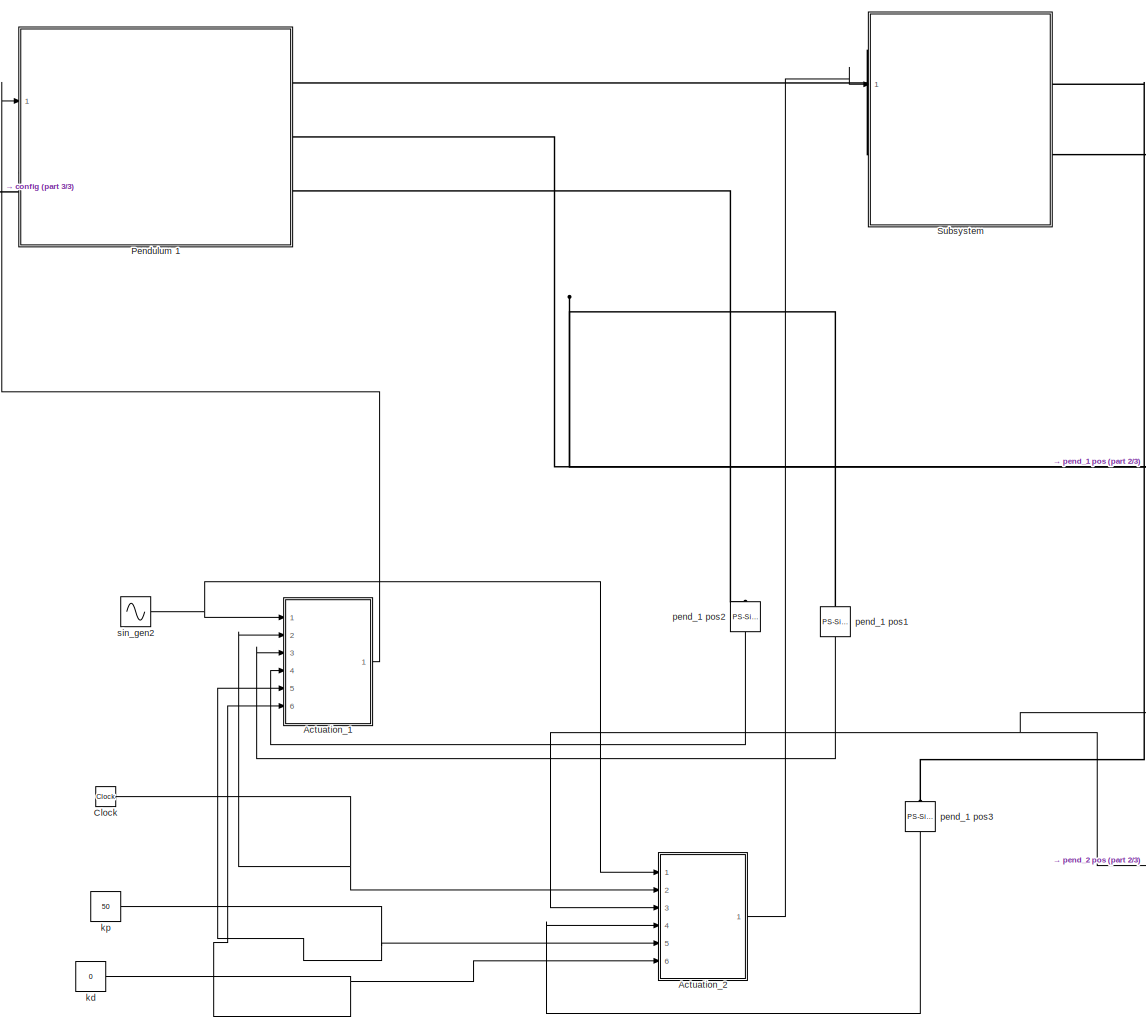
[diagram: root canvas - part 1/3, center side, full height]
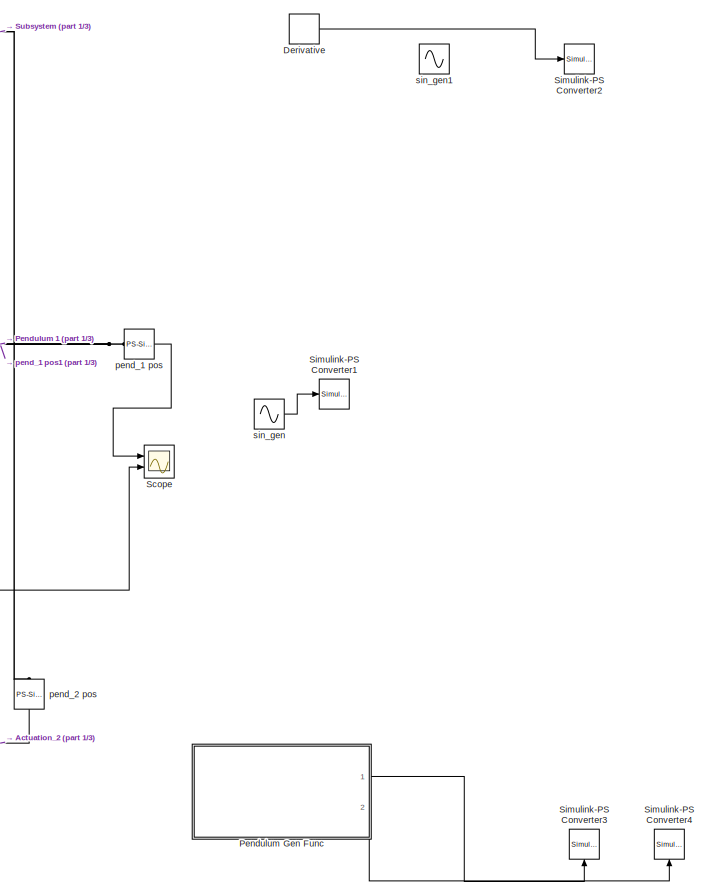
[diagram: root canvas - part 2/3, right side, full height]
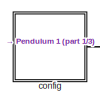
[diagram: root canvas - part 3/3, top left region]
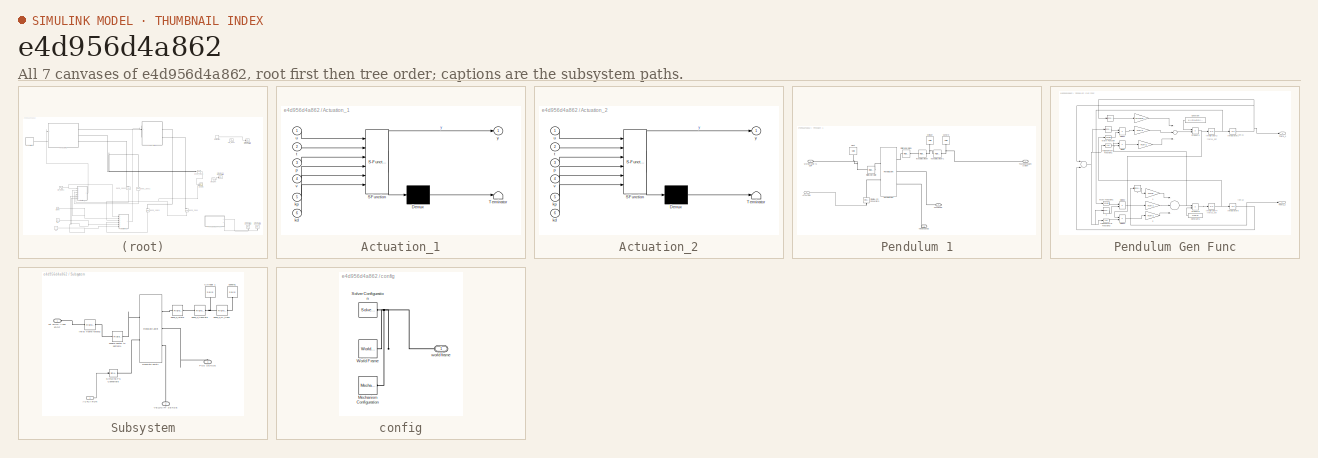
[diagram: thumbnail index - all 7 canvases of the model, root first then tree order]
MODEL slx_e4d956d4a862
KIND model
CONFIG AbsTol = auto
CONFIG EnableMultiTasking = on
CONFIG FixedStep = auto
CONFIG InitFcn = m1 = 7800;\nm2 = 1000;\nl1 = 10;\nl2 = 10;\n
CONFIG MaxStep = 1/60
CONFIG MinStep = auto
CONFIG RelTol = 1e-3
CONFIG SampleTimeConstraint = Unconstrained
CONFIG Solver = VariableStepAuto
CONFIG SolverName = VariableStepAuto
CONFIG StartTime = 0.0
CONFIG StopTime = 20
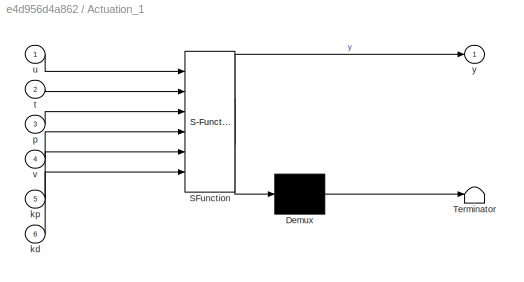
BLOCK [SubSystem] Actuation_1
  ErrorFcn = Stateflow.Translate.translate
  PermitHierarchicalResolution = ExplicitOnly
  Ports = [6, 1]
  RequestExecContextInheritance = off
  SFBlockType = MATLAB Function
  TreatAsAtomicUnit = on
  Variant = off
BLOCK [Demux] Actuation_1/ Demux 
  Outputs = 1
  Ports = [1, 1]
BLOCK [S-Function] Actuation_1/ SFunction 
  EnableBusSupport = on
  FunctionName = sf_sfun
  PortCounts = [6 2]
  Ports = [6, 2]
  SFcnIsStateOwnerBlock = off
  SFunctionDeploymentMode = off
  Tag = Stateflow S-Function double_pend 2
BLOCK [Terminator] Actuation_1/ Terminator 
BLOCK [Inport] Actuation_1/kd
  IconDisplay = Port number
  Port = 6
BLOCK [Inport] Actuation_1/kp
  IconDisplay = Port number
  Port = 5
BLOCK [Inport] Actuation_1/p
  IconDisplay = Port number
  Port = 3
BLOCK [Inport] Actuation_1/t
  IconDisplay = Port number
  Port = 2
BLOCK [Inport] Actuation_1/u
  IconDisplay = Port number
BLOCK [Inport] Actuation_1/v
  IconDisplay = Port number
  Port = 4
BLOCK [Outport] Actuation_1/y
  IconDisplay = Port number
BLOCK [SubSystem] Actuation_2
  ErrorFcn = Stateflow.Translate.translate
  PermitHierarchicalResolution = ExplicitOnly
  Ports = [6, 1]
  RequestExecContextInheritance = off
  SFBlockType = MATLAB Function
  TreatAsAtomicUnit = on
  Variant = off
BLOCK [Demux] Actuation_2/ Demux 
  Outputs = 1
  Ports = [1, 1]
BLOCK [S-Function] Actuation_2/ SFunction 
  EnableBusSupport = on
  FunctionName = sf_sfun
  PortCounts = [6 2]
  Ports = [6, 2]
  SFcnIsStateOwnerBlock = off
  SFunctionDeploymentMode = off
  Tag = Stateflow S-Function double_pend 1
BLOCK [Terminator] Actuation_2/ Terminator 
BLOCK [Inport] Actuation_2/kd
  IconDisplay = Port number
  Port = 6
BLOCK [Inport] Actuation_2/kp
  IconDisplay = Port number
  Port = 5
BLOCK [Inport] Actuation_2/p
  IconDisplay = Port number
  Port = 3
BLOCK [Inport] Actuation_2/t
  IconDisplay = Port number
  Port = 2
BLOCK [Inport] Actuation_2/u
  IconDisplay = Port number
BLOCK [Inport] Actuation_2/v
  IconDisplay = Port number
  Port = 4
BLOCK [Outport] Actuation_2/y
  IconDisplay = Port number
BLOCK [Clock] Clock
BLOCK [Derivative] Derivative
  Commented = on
BLOCK [SubSystem] Pendulum 1
  Ports = [1, 0, 0, 0, 0, 1, 3]
  RequestExecContextInheritance = off
  Variant = off
BLOCK [Reference] Pendulum 1/ Pivot  REF=sm_lib/Body Elements/Solid
  Ports = [0, 0, 0, 0, 0, 0, 1]
  SourceBlock = sm_lib/Body Elements/Solid
  SourceProductBaseCode = MS
  SourceProductName = Simscape Multibody
  SourceType = Solid
BLOCK [PMIOPort] Pendulum 1/ Velocity SENSE
  Port = 4
  Side = Right
BLOCK [Reference] Pendulum 1/ sphere  REF=sm_lib/Body Elements/Solid
  Ports = [0, 0, 0, 0, 0, 0, 1]
  SourceBlock = sm_lib/Body Elements/Solid
  SourceProductBaseCode = MS
  SourceProductName = Simscape Multibody
  SourceType = Solid
BLOCK [Inport] Pendulum 1/ACTUATION
  IconDisplay = Port number
BLOCK [Reference] Pendulum 1/Cylinder   REF=sm_lib/Body Elements/Solid
  Ports = [0, 0, 0, 0, 0, 0, 1]
  SourceBlock = sm_lib/Body Elements/Solid
  SourceProductBaseCode = MS
  SourceProductName = Simscape Multibody
  SourceType = Solid
BLOCK [PMIOPort] Pendulum 1/Pos SENSE
  Port = 3
  Side = Right
BLOCK [Reference] Pendulum 1/Revolute Joint  REF=sm_lib/Joints/Revolute Joint
  Ports = [0, 0, 0, 0, 0, 2, 3]
  SourceBlock = sm_lib/Joints/Revolute Joint
  SourceProductBaseCode = MS
  SourceProductName = Simscape Multibody
  SourceType = Revolute Joint
BLOCK [Reference] Pendulum 1/Simulink-PS Converter5  REF=nesl_utility/Simulink-PS
Converter
  Ports = [1, 0, 0, 0, 0, 0, 1]
  SourceBlock = nesl_utility/Simulink-PS\nConverter
  SourceProductBaseCode = SS
  SourceProductName = Simscape
  SourceType = Simulink-PS\nConverter
BLOCK [PMIOPort] Pendulum 1/To 2nd pendulum system
  Port = 2
  Side = Right
BLOCK [PMIOPort] Pendulum 1/World Frame -> 1 DOF
  Port = 1
  Side = Left
BLOCK [Reference] Pendulum 1/intial frame rotate  REF=sm_lib/Frames and
Transforms/Rigid
Transform
  AttributesFormatString = %<RotationAngle>\n%<RotationAngleUnits>\n%<RotationStandardAxis>
  Ports = [0, 0, 0, 0, 0, 1, 1]
  SourceBlock = sm_lib/Frames and\nTransforms/Rigid\nTransform
  SourceProductBaseCode = MS
  SourceProductName = Simscape Multibody
  SourceType = Rigid\nTransform
BLOCK [Reference] Pendulum 1/intial frame rotate1  REF=sm_lib/Frames and
Transforms/Rigid
Transform
  AttributesFormatString = %<RotationAngle>\n%<RotationAngleUnits>\n%<RotationStandardAxis>
  Ports = [0, 0, 0, 0, 0, 1, 1]
  SourceBlock = sm_lib/Frames and\nTransforms/Rigid\nTransform
  SourceProductBaseCode = MS
  SourceProductName = Simscape Multibody
  SourceType = Rigid\nTransform
BLOCK [Reference] Pendulum 1/translate cylinder  REF=sm_lib/Frames and
Transforms/Rigid
Transform
  AttributesFormatString = %<TranslationStandardAxis>\n%<TranslationStandardOffset> cm
  Ports = [0, 0, 0, 0, 0, 1, 1]
  SourceBlock = sm_lib/Frames and\nTransforms/Rigid\nTransform
  SourceProductBaseCode = MS
  SourceProductName = Simscape Multibody
  SourceType = Rigid\nTransform
BLOCK [Reference] Pendulum 1/translate cylinder1  REF=sm_lib/Frames and
Transforms/Rigid
Transform
  AttributesFormatString = %<TranslationStandardAxis>\n%<TranslationStandardOffset> cm
  Ports = [0, 0, 0, 0, 0, 1, 1]
  SourceBlock = sm_lib/Frames and\nTransforms/Rigid\nTransform
  SourceProductBaseCode = MS
  SourceProductName = Simscape Multibody
  SourceType = Rigid\nTransform
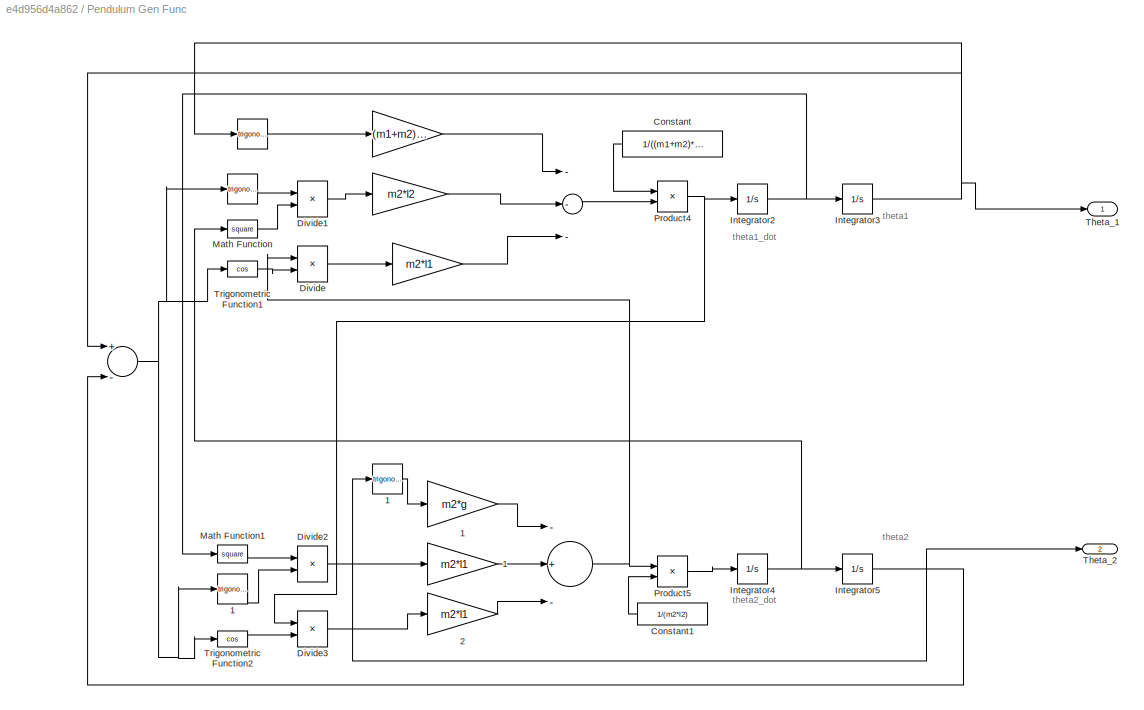
BLOCK [SubSystem] Pendulum Gen Func
  Commented = on
  Ports = [0, 2]
  RequestExecContextInheritance = off
  Variant = off
BLOCK [Gain] Pendulum Gen Func/ 
  Gain = m2*l2
  OutDataTypeStr = Inherit: Inherit via internal rule
  ParamDataTypeStr = Inherit: Inherit via internal rule
  SaturateOnIntegerOverflow = off
BLOCK [Gain] Pendulum Gen Func/  
  Gain = (m1+m2)*g
  OutDataTypeStr = Inherit: Inherit via internal rule
  ParamDataTypeStr = Inherit: Inherit via internal rule
  SaturateOnIntegerOverflow = off
BLOCK [Sum] Pendulum Gen Func/   
  InputSameDT = off
  Inputs = -+-
  OutDataTypeStr = Inherit: Inherit via internal rule
  Ports = [3, 1]
  SaturateOnIntegerOverflow = off
BLOCK [Trigonometry] Pendulum Gen Func/    
  Ports = [1, 1]
BLOCK [Gain] Pendulum Gen Func/     
  Gain = m2*l1
  OutDataTypeStr = Inherit: Inherit via internal rule
  ParamDataTypeStr = Inherit: Inherit via internal rule
  SaturateOnIntegerOverflow = off
BLOCK [Trigonometry] Pendulum Gen Func/          
  Ports = [1, 1]
BLOCK [Sum] Pendulum Gen Func/                                    
  InputSameDT = off
  Inputs = ---
  OutDataTypeStr = Inherit: Inherit via internal rule
  Ports = [3, 1]
  SaturateOnIntegerOverflow = off
BLOCK [Sum] Pendulum Gen Func/                                     
  InputSameDT = off
  Inputs = +-
  OutDataTypeStr = Inherit: Inherit via internal rule
  Ports = [2, 1]
  SaturateOnIntegerOverflow = off
BLOCK [Trigonometry] Pendulum Gen Func/          1
  Ports = [1, 1]
BLOCK [Gain] Pendulum Gen Func/     1
  Gain = m2*l1
  OutDataTypeStr = Inherit: Inherit via internal rule
  ParamDataTypeStr = Inherit: Inherit via internal rule
  SaturateOnIntegerOverflow = off
BLOCK [Gain] Pendulum Gen Func/     2
  Gain = m2*l1
  OutDataTypeStr = Inherit: Inherit via internal rule
  ParamDataTypeStr = Inherit: Inherit via internal rule
  SaturateOnIntegerOverflow = off
BLOCK [Trigonometry] Pendulum Gen Func/    1
  Ports = [1, 1]
BLOCK [Gain] Pendulum Gen Func/  1
  Gain = m2*g
  OutDataTypeStr = Inherit: Inherit via internal rule
  ParamDataTypeStr = Inherit: Inherit via internal rule
  SaturateOnIntegerOverflow = off
BLOCK [Constant] Pendulum Gen Func/Constant
  Value = 1/((m1+m2)*l1)
  VectorParams1D = off
BLOCK [Constant] Pendulum Gen Func/Constant1
  Value = 1/(m2*l2)
  VectorParams1D = off
BLOCK [Product] Pendulum Gen Func/Divide
  InputSameDT = off
  OutDataTypeStr = Inherit: Inherit via internal rule
  Ports = [2, 1]
  RndMeth = Floor
  SaturateOnIntegerOverflow = off
BLOCK [Product] Pendulum Gen Func/Divide1
  InputSameDT = off
  OutDataTypeStr = Inherit: Inherit via internal rule
  Ports = [2, 1]
  RndMeth = Floor
  SaturateOnIntegerOverflow = off
BLOCK [Product] Pendulum Gen Func/Divide2
  InputSameDT = off
  OutDataTypeStr = Inherit: Inherit via internal rule
  Ports = [2, 1]
  RndMeth = Floor
  SaturateOnIntegerOverflow = off
BLOCK [Product] Pendulum Gen Func/Divide3
  InputSameDT = off
  OutDataTypeStr = Inherit: Inherit via internal rule
  Ports = [2, 1]
  RndMeth = Floor
  SaturateOnIntegerOverflow = off
BLOCK [Integrator] Pendulum Gen Func/Integrator2
  Ports = [1, 1]
BLOCK [Integrator] Pendulum Gen Func/Integrator3
  Ports = [1, 1]
BLOCK [Integrator] Pendulum Gen Func/Integrator4
  Ports = [1, 1]
BLOCK [Integrator] Pendulum Gen Func/Integrator5
  Ports = [1, 1]
BLOCK [Math] Pendulum Gen Func/Math Function
  Operator = square
  Ports = [1, 1]
BLOCK [Math] Pendulum Gen Func/Math Function1
  Operator = square
  Ports = [1, 1]
BLOCK [Product] Pendulum Gen Func/Product4
  InputSameDT = off
  OutDataTypeStr = Inherit: Inherit via internal rule
  Ports = [2, 1]
  RndMeth = Floor
  SaturateOnIntegerOverflow = off
BLOCK [Product] Pendulum Gen Func/Product5
  InputSameDT = off
  OutDataTypeStr = Inherit: Inherit via internal rule
  Ports = [2, 1]
  RndMeth = Floor
  SaturateOnIntegerOverflow = off
BLOCK [Outport] Pendulum Gen Func/Theta_1
  IconDisplay = Port number
BLOCK [Outport] Pendulum Gen Func/Theta_2
  IconDisplay = Port number
  Port = 2
BLOCK [Trigonometry] Pendulum Gen Func/Trigonometric Function1
  Operator = cos
  Ports = [1, 1]
BLOCK [Trigonometry] Pendulum Gen Func/Trigonometric Function2
  Operator = cos
  Ports = [1, 1]
BLOCK [Scope] Scope
  NumInputPorts = 2
  Ports = [2]
  ScopeSpecificationString = Simulink.scopes.TimeScopeBlockCfg('CurrentConfiguration', extmgr.ConfigurationSet(extmgr.Configuration('Core','General UI',true),extmgr.Configuration('Core','Source UI',true),extmgr.Configuration('Sources','WiredSimulink',true,'DataLoggingLimitDataPoints',true,'DataLoggingSaveFormat','Array','DataLoggingDecimation','1','DataLoggingDecimateData',true),extmgr.Configuration('Visuals','Time Domain',tr...<+1687ch>
BLOCK [Reference] Simulink-PS Converter1  REF=nesl_utility/Simulink-PS
Converter
  Commented = on
  Ports = [1, 0, 0, 0, 0, 0, 1]
  SourceBlock = nesl_utility/Simulink-PS\nConverter
  SourceProductBaseCode = SS
  SourceProductName = Simscape
  SourceType = Simulink-PS\nConverter
BLOCK [Reference] Simulink-PS Converter2  REF=nesl_utility/Simulink-PS
Converter
  Commented = on
  Ports = [1, 0, 0, 0, 0, 0, 1]
  SourceBlock = nesl_utility/Simulink-PS\nConverter
  SourceProductBaseCode = SS
  SourceProductName = Simscape
  SourceType = Simulink-PS\nConverter
BLOCK [Reference] Simulink-PS Converter3  REF=nesl_utility/Simulink-PS
Converter
  Commented = on
  Ports = [1, 0, 0, 0, 0, 0, 1]
  SourceBlock = nesl_utility/Simulink-PS\nConverter
  SourceProductBaseCode = SS
  SourceProductName = Simscape
  SourceType = Simulink-PS\nConverter
BLOCK [Reference] Simulink-PS Converter4  REF=nesl_utility/Simulink-PS
Converter
  Commented = on
  Ports = [1, 0, 0, 0, 0, 0, 1]
  SourceBlock = nesl_utility/Simulink-PS\nConverter
  SourceProductBaseCode = SS
  SourceProductName = Simscape
  SourceType = Simulink-PS\nConverter
BLOCK [SubSystem] Subsystem
  Ports = [1, 0, 0, 0, 0, 1, 2]
  RequestExecContextInheritance = off
  Variant = off
BLOCK [Reference] Subsystem/ sphere1  REF=sm_lib/Body Elements/Solid
  Ports = [0, 0, 0, 0, 0, 0, 1]
  SourceBlock = sm_lib/Body Elements/Solid
  SourceProductBaseCode = MS
  SourceProductName = Simscape Multibody
  SourceType = Solid
BLOCK [PMIOPort] Subsystem/1st 1DOF -> 2nd 1DOF
  Port = 1
  Side = Left
BLOCK [Inport] Subsystem/ACTUATION
  IconDisplay = Port number
BLOCK [Reference] Subsystem/Cylinder 1  REF=sm_lib/Body Elements/Solid
  Ports = [0, 0, 0, 0, 0, 0, 1]
  SourceBlock = sm_lib/Body Elements/Solid
  SourceProductBaseCode = MS
  SourceProductName = Simscape Multibody
  SourceType = Solid
BLOCK [PMIOPort] Subsystem/POS SENSE
  Port = 3
  Side = Right
BLOCK [Reference] Subsystem/Revolute Joint1  REF=sm_lib/Joints/Revolute Joint
  Ports = [0, 0, 0, 0, 0, 2, 3]
  SourceBlock = sm_lib/Joints/Revolute Joint
  SourceProductBaseCode = MS
  SourceProductName = Simscape Multibody
  SourceType = Revolute Joint
BLOCK [Reference] Subsystem/Simulink-PS Converter5  REF=nesl_utility/Simulink-PS
Converter
  Ports = [1, 0, 0, 0, 0, 0, 1]
  SourceBlock = nesl_utility/Simulink-PS\nConverter
  SourceProductBaseCode = SS
  SourceProductName = Simscape
  SourceType = Simulink-PS\nConverter
BLOCK [PMIOPort] Subsystem/VELOCITY SENSE
  Port = 2
  Side = Right
BLOCK [Reference] Subsystem/intial frame rotate2  REF=sm_lib/Frames and
Transforms/Rigid
Transform
  AttributesFormatString = %<RotationAngle>\n%<RotationAngleUnits>\n%<RotationStandardAxis>
  Ports = [0, 0, 0, 0, 0, 1, 1]
  SourceBlock = sm_lib/Frames and\nTransforms/Rigid\nTransform
  SourceProductBaseCode = MS
  SourceProductName = Simscape Multibody
  SourceType = Rigid\nTransform
BLOCK [Reference] Subsystem/pend_2_cyl_trans  REF=sm_lib/Frames and
Transforms/Rigid
Transform
  AttributesFormatString = %<TranslationStandardAxis>\n%<TranslationStandardOffset> cm
  Ports = [0, 0, 0, 0, 0, 1, 1]
  SourceBlock = sm_lib/Frames and\nTransforms/Rigid\nTransform
  SourceProductBaseCode = MS
  SourceProductName = Simscape Multibody
  SourceType = Rigid\nTransform
BLOCK [Reference] Subsystem/pend_2_rotate  REF=sm_lib/Frames and
Transforms/Rigid
Transform
  AttributesFormatString = %<RotationAngle>\n%<RotationAngleUnits>\n%<RotationStandardAxis>
  Ports = [0, 0, 0, 0, 0, 1, 1]
  SourceBlock = sm_lib/Frames and\nTransforms/Rigid\nTransform
  SourceProductBaseCode = MS
  SourceProductName = Simscape Multibody
  SourceType = Rigid\nTransform
BLOCK [Reference] Subsystem/pend_2_translate  REF=sm_lib/Frames and
Transforms/Rigid
Transform
  AttributesFormatString = %<TranslationStandardAxis>\n%<TranslationStandardOffset> cm
  Ports = [0, 0, 0, 0, 0, 1, 1]
  SourceBlock = sm_lib/Frames and\nTransforms/Rigid\nTransform
  SourceProductBaseCode = MS
  SourceProductName = Simscape Multibody
  SourceType = Rigid\nTransform
BLOCK [Reference] Subsystem/sphere center to bottom1  REF=sm_lib/Frames and
Transforms/Rigid
Transform
  AttributesFormatString = %<TranslationStandardAxis>\n%<TranslationStandardOffset> cm
  Ports = [0, 0, 0, 0, 0, 1, 1]
  SourceBlock = sm_lib/Frames and\nTransforms/Rigid\nTransform
  SourceProductBaseCode = MS
  SourceProductName = Simscape Multibody
  SourceType = Rigid\nTransform
BLOCK [SubSystem] config
  Ports = [0, 0, 0, 0, 0, 0, 1]
  RequestExecContextInheritance = off
  Variant = off
BLOCK [Reference] config/Mechanism Configuration  REF=sm_lib/Utilities/Mechanism
Configuration
  Ports = [0, 0, 0, 0, 0, 0, 1]
  SourceBlock = sm_lib/Utilities/Mechanism\nConfiguration
  SourceProductBaseCode = MS
  SourceProductName = Simscape Multibody
  SourceType = Mechanism\nConfiguration
BLOCK [Reference] config/Solver Configuration  REF=nesl_utility/Solver
Configuration
  Ports = [0, 0, 0, 0, 0, 0, 1]
  SourceBlock = nesl_utility/Solver\nConfiguration
  SourceProductBaseCode = SS
  SourceProductName = Simscape
  SourceType = Solver\nConfiguration
BLOCK [Reference] config/World Frame  REF=sm_lib/Frames and
Transforms/World Frame
  Ports = [0, 0, 0, 0, 0, 0, 1]
  SourceBlock = sm_lib/Frames and\nTransforms/World Frame
  SourceProductBaseCode = MS
  SourceProductName = Simscape Multibody
  SourceType = World Frame
BLOCK [PMIOPort] config/world frame
  Port = 1
  Side = Right
BLOCK [Constant] kd
  Value = 0
BLOCK [Constant] kp
  Value = 50
BLOCK [Reference] pend_1 pos  REF=nesl_utility/PS-Simulink
Converter
  Ports = [0, 1, 0, 0, 0, 1]
  SourceBlock = nesl_utility/PS-Simulink\nConverter
  SourceProductBaseCode = SS
  SourceProductName = Simscape
  SourceType = PS-Simulink\nConverter
BLOCK [Reference] pend_1 pos1  REF=nesl_utility/PS-Simulink
Converter
  Ports = [0, 1, 0, 0, 0, 1]
  SourceBlock = nesl_utility/PS-Simulink\nConverter
  SourceProductBaseCode = SS
  SourceProductName = Simscape
  SourceType = PS-Simulink\nConverter
BLOCK [Reference] pend_1 pos2  REF=nesl_utility/PS-Simulink
Converter
  Ports = [0, 1, 0, 0, 0, 1]
  SourceBlock = nesl_utility/PS-Simulink\nConverter
  SourceProductBaseCode = SS
  SourceProductName = Simscape
  SourceType = PS-Simulink\nConverter
BLOCK [Reference] pend_1 pos3  REF=nesl_utility/PS-Simulink
Converter
  Ports = [0, 1, 0, 0, 0, 1]
  SourceBlock = nesl_utility/PS-Simulink\nConverter
  SourceProductBaseCode = SS
  SourceProductName = Simscape
  SourceType = PS-Simulink\nConverter
BLOCK [Reference] pend_2 pos  REF=nesl_utility/PS-Simulink
Converter
  Ports = [0, 1, 0, 0, 0, 1]
  SourceBlock = nesl_utility/PS-Simulink\nConverter
  SourceProductBaseCode = SS
  SourceProductName = Simscape
  SourceType = PS-Simulink\nConverter
BLOCK [Sin] sin_gen
  Amplitude = 5
  AttributesFormatString = Amplitude = %<Amplitude>\nFrequency = %<Frequency>\nPhase = %<Phase>\n%<SineType>
  Commented = on
  Phase = pi/2
  Ports = [0, 1]
  SampleTime = 0
BLOCK [Sin] sin_gen1
  Amplitude = 5
  AttributesFormatString = Amplitude = %<Amplitude>\nFrequency = %<Frequency>\nPhase = %<Phase>\n%<SineType>
  Commented = on
  Phase = pi/2
  Ports = [0, 1]
  SampleTime = 0
BLOCK [Sin] sin_gen2
  AttributesFormatString = Amplitude = %<Amplitude>\nFrequency = %<Frequency>\nPhase = %<Phase>\n%<SineType>
  Ports = [0, 1]
  SampleTime = 0
ANNOTATION Pendulum Gen Func: theta1
ANNOTATION Pendulum Gen Func: theta1_dot
ANNOTATION Pendulum Gen Func: theta2
ANNOTATION Pendulum Gen Func: theta2_dot
LINE Actuation_1:1 -> Pendulum 1:1
LINE Actuation_2:1 -> Subsystem:1
NET Clock:1 -> Actuation_1:2, Actuation_2:2
LINE Derivative:1 -> Simulink-PS Converter2:1
LINE Pendulum 1/ACTUATION:1 -> Pendulum 1/Simulink-PS Converter5:1
NET Pendulum Gen Func/                                     :1 -> Pendulum Gen Func/          1:1, Pendulum Gen Func/          :1, Pendulum Gen Func/Trigonometric Function1:1, Pendulum Gen Func/Trigonometric Function2:1
LINE Pendulum Gen Func/                                    :1 -> Pendulum Gen Func/Product4:2
LINE Pendulum Gen Func/          1:1 -> Pendulum Gen Func/Divide2:2
LINE Pendulum Gen Func/          :1 -> Pendulum Gen Func/Divide1:1
LINE Pendulum Gen Func/     1:1 -> Pendulum Gen Func/   :2
LINE Pendulum Gen Func/     2:1 -> Pendulum Gen Func/   :3
LINE Pendulum Gen Func/     :1 -> Pendulum Gen Func/                                    :3
LINE Pendulum Gen Func/    1:1 -> Pendulum Gen Func/  1:1
LINE Pendulum Gen Func/    :1 -> Pendulum Gen Func/  :1
NET Pendulum Gen Func/   :1 -> Pendulum Gen Func/Divide:1, Pendulum Gen Func/Product5:1
LINE Pendulum Gen Func/  1:1 -> Pendulum Gen Func/   :1
LINE Pendulum Gen Func/  :1 -> Pendulum Gen Func/                                    :1
LINE Pendulum Gen Func/ :1 -> Pendulum Gen Func/                                    :2
LINE Pendulum Gen Func/Constant1:1 -> Pendulum Gen Func/Product5:2
LINE Pendulum Gen Func/Constant:1 -> Pendulum Gen Func/Product4:1
LINE Pendulum Gen Func/Divide1:1 -> Pendulum Gen Func/ :1
LINE Pendulum Gen Func/Divide2:1 -> Pendulum Gen Func/     1:1
LINE Pendulum Gen Func/Divide3:1 -> Pendulum Gen Func/     2:1
LINE Pendulum Gen Func/Divide:1 -> Pendulum Gen Func/     :1
NET Pendulum Gen Func/Integrator2:1 -> Pendulum Gen Func/Integrator3:1, Pendulum Gen Func/Math Function1:1
NET Pendulum Gen Func/Integrator3:1 -> Pendulum Gen Func/                                     :1, Pendulum Gen Func/    :1, Pendulum Gen Func/Theta_1:1
NET Pendulum Gen Func/Integrator4:1 -> Pendulum Gen Func/Integrator5:1, Pendulum Gen Func/Math Function:1
NET Pendulum Gen Func/Integrator5:1 -> Pendulum Gen Func/                                     :2, Pendulum Gen Func/    1:1, Pendulum Gen Func/Theta_2:1
LINE Pendulum Gen Func/Math Function1:1 -> Pendulum Gen Func/Divide2:1
LINE Pendulum Gen Func/Math Function:1 -> Pendulum Gen Func/Divide1:2
NET Pendulum Gen Func/Product4:1 -> Pendulum Gen Func/Divide3:1, Pendulum Gen Func/Integrator2:1
LINE Pendulum Gen Func/Product5:1 -> Pendulum Gen Func/Integrator4:1
LINE Pendulum Gen Func/Trigonometric Function1:1 -> Pendulum Gen Func/Divide:2
LINE Pendulum Gen Func/Trigonometric Function2:1 -> Pendulum Gen Func/Divide3:2
LINE Pendulum Gen Func:1 -> Simulink-PS Converter3:1
LINE Pendulum Gen Func:2 -> Simulink-PS Converter4:1
LINE Subsystem/ACTUATION:1 -> Subsystem/Simulink-PS Converter5:1
NET kd:1 -> Actuation_1:6, Actuation_2:6
NET kp:1 -> Actuation_1:5, Actuation_2:5
LINE pend_1 pos1:1 -> Actuation_1:3
LINE pend_1 pos2:1 -> Actuation_1:4
LINE pend_1 pos3:1 -> Actuation_2:4
LINE pend_1 pos:1 -> Scope:1
NET pend_2 pos:1 -> Actuation_2:3, Scope:2
NET sin_gen2:1 -> Actuation_1:1, Actuation_2:1
LINE sin_gen:1 -> Simulink-PS Converter1:1
PNET net1: Pendulum 1/ Pivot:RConn1 -- Pendulum 1/World Frame -> 1 DOF:RConn1 -- Pendulum 1/intial frame rotate:LConn1
PLINE Pendulum 1/ Velocity SENSE:RConn1 -- Pendulum 1/Revolute Joint:RConn3
PNET net2: Pendulum 1/ sphere:RConn1 -- Pendulum 1/To 2nd pendulum system:RConn1 -- Pendulum 1/translate cylinder1:RConn1
PNET net3: Pendulum 1/Cylinder :RConn1 -- Pendulum 1/translate cylinder1:LConn1 -- Pendulum 1/translate cylinder:RConn1
PLINE Pendulum 1/Pos SENSE:RConn1 -- Pendulum 1/Revolute Joint:RConn2
PLINE Pendulum 1/Revolute Joint:LConn1 -- Pendulum 1/intial frame rotate:RConn1
PLINE Pendulum 1/Revolute Joint:LConn2 -- Pendulum 1/Simulink-PS Converter5:RConn1
PLINE Pendulum 1/Revolute Joint:RConn1 -- Pendulum 1/intial frame rotate1:LConn1
PLINE Pendulum 1/intial frame rotate1:RConn1 -- Pendulum 1/translate cylinder:LConn1
PLINE Pendulum 1:LConn1 -- config:RConn1
PLINE Pendulum 1:RConn1 -- Subsystem:LConn1
PNET net4: Pendulum 1:RConn2 -- pend_1 pos1:LConn1 -- pend_1 pos:LConn1
PLINE Pendulum 1:RConn3 -- pend_1 pos2:LConn1
PLINE Subsystem/ sphere1:RConn1 -- Subsystem/pend_2_cyl_trans:RConn1
PLINE Subsystem/1st 1DOF -> 2nd 1DOF:RConn1 -- Subsystem/intial frame rotate2:LConn1
PNET net5: Subsystem/Cylinder 1:RConn1 -- Subsystem/pend_2_cyl_trans:LConn1 -- Subsystem/pend_2_translate:RConn1
PLINE Subsystem/POS SENSE:RConn1 -- Subsystem/Revolute Joint1:RConn2
PLINE Subsystem/Revolute Joint1:LConn1 -- Subsystem/sphere center to bottom1:RConn1
PLINE Subsystem/Revolute Joint1:LConn2 -- Subsystem/Simulink-PS Converter5:RConn1
PLINE Subsystem/Revolute Joint1:RConn1 -- Subsystem/pend_2_rotate:LConn1
PLINE Subsystem/Revolute Joint1:RConn3 -- Subsystem/VELOCITY SENSE:RConn1
PLINE Subsystem/intial frame rotate2:RConn1 -- Subsystem/sphere center to bottom1:LConn1
PLINE Subsystem/pend_2_rotate:RConn1 -- Subsystem/pend_2_translate:LConn1
PLINE Subsystem:RConn1 -- pend_1 pos3:LConn1
PLINE Subsystem:RConn2 -- pend_2 pos:LConn1
PNET net6: config/Mechanism Configuration:RConn1 -- config/Solver Configuration:RConn1 -- config/World Frame:RConn1 -- config/world frame:RConn1
note: NET lines group one-source signal fan-out (src -> all destinations, sorted); 1:1 wires keep LINE; PNET lines group multi-terminal physical nets as a canonical sorted terminal list (undirected conserving connections); 2-terminal nets keep the pairwise PLINE form
CHART Actuation_2 states=1 transitions=1
  STATE_LABEL 'eML_blk_kernel()'
  STATE_LABEL 'SCRIPT:\nfunction y = fcn(u,t,p,v,kp,kd)\np_des = -pi/6; %desired position\n%p_des = u;\nv_des = 5*cos(t);\ne = p - p_des; %error\ny = -kp*e-kd*(v-v_des);\n%y = u;  %-0.43*9.8*0.5/.009;\n'
CHART Actuation_1 states=1 transitions=1
  STATE_LABEL 'eML_blk_kernel()'
  STATE_LABEL 'SCRIPT:\nfunction y = fcn(u,t,p,v,kp,kd)\np_des = -pi/6; %desired position\n%p_des = u;\nv_des = 5*cos(t);\ne = p - p_des; %error\ny = -kp*e-kd*(v-v_des);\n%y = u;  %-0.43*9.8*0.5/.009;\n'
